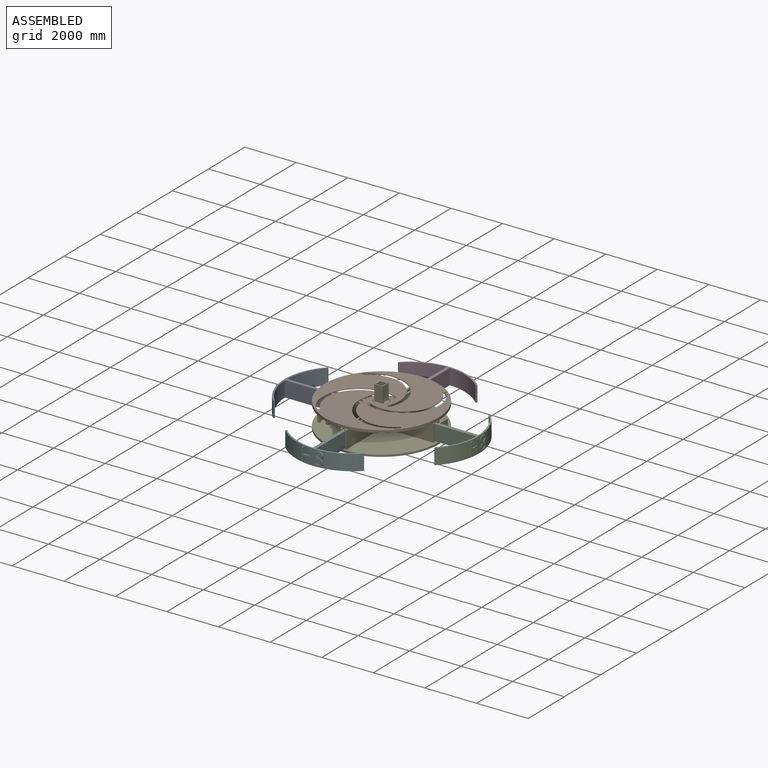
[diagram: assembled view]
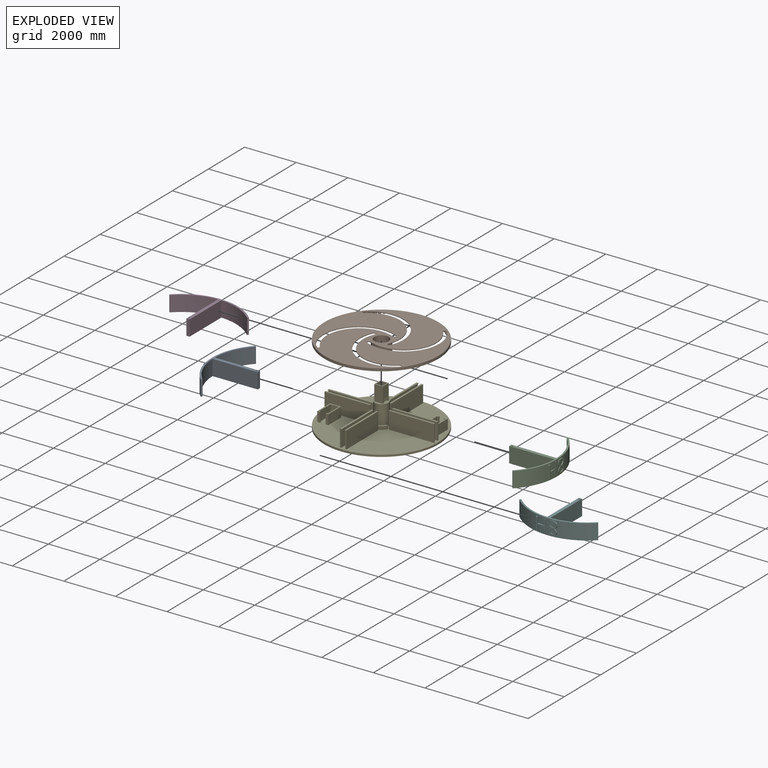
[diagram: exploded view]
GUIDED TOUR — MATED ASSEMBLY (Onshape document 1637730c43ce906da38fb0ba, AutoMate assembly 1637730c43ce906da38fb0ba_b3f430c310a2b3c474eee79f_f87a26aaee73d0ae6c627722_default)

This assembly has 6 components, labeled P0..P5 below (a component is one placed occurrence of a part; the same part can appear more than once), held together by 5 mates. A mate is a constraint between two components; its type names the relative motion it leaves free:
  REVOLUTE — leaves rotation about the listed axis free (a hinge),
  SLIDER — leaves translation along the listed axis free.
Axis/direction vectors are unit vectors and 'through' points are millimeter coordinates, both in the assembly's world frame.

MATES
  1. SLIDER "Slider 4": P4 <-> P3, axis (0.000, 1.000, 0.000) through (-2259.58, 3073.91, 1286.61) mm
  2. SLIDER "Slider 1": P4 <-> P2, axis (1.000, 0.000, 0.000) through (-35.43, 1056.26, 1286.61) mm
  3. REVOLUTE "Revolute 1": P4 <-> P1, axis (0.000, 0.000, -1.000) through (-2156.33, 953.01, 1443.84) mm
  4. SLIDER "Slider 3": P4 <-> P5, axis (0.000, -1.000, 0.000) through (-2259.58, -1167.89, 1286.61) mm
  5. SLIDER "Slider 2": P4 <-> P0, axis (-1.000, 0.000, 0.000) through (-4277.23, 849.76, 1286.61) mm

ASSEMBLY ORDER
  1. P4 — the base component [order heuristic]
  2. P1 — core [order heuristic]
  3. P2 [order verified]
  4. P0 [order verified]
  5. P5 [order verified]
  6. P3 [order verified]
Order-tag legend:
  [order verified] — this step's position reverses a verified removal order: the component was checked to insert without passing through the ones already placed.
  [order heuristic] — the first 2 components form the assembly's core: parts whose collision-free extraction could not be verified, listed in mate-graph order.

Of the 6 components, 1 carries the full construction recipe — the FeatureScript program that regenerates the part's solid from scratch; the rest are supplied as boundary geometry only.
Each toured component is shown spotlighted twice — in the assembled view, then in the exploded view, where a leader line traces a displaced component back to its assembled socket (saturated green if recipe-attached, orange if geometry-only; every other component desaturated gray) — followed by its recipe or geometry summary and the mates that hold it.
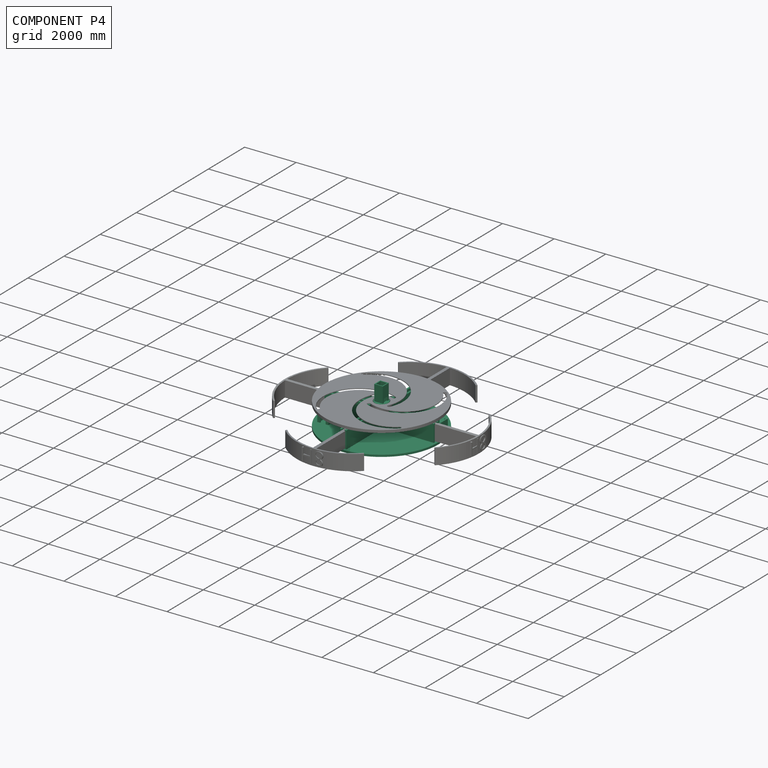
[diagram: component P4 — assembled]
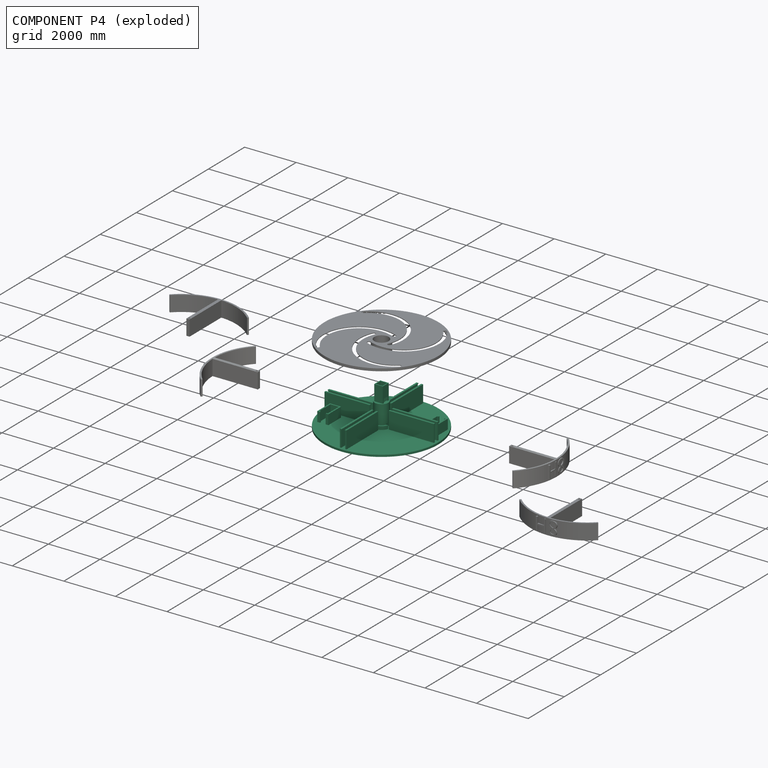
[diagram: component P4 — exploded]
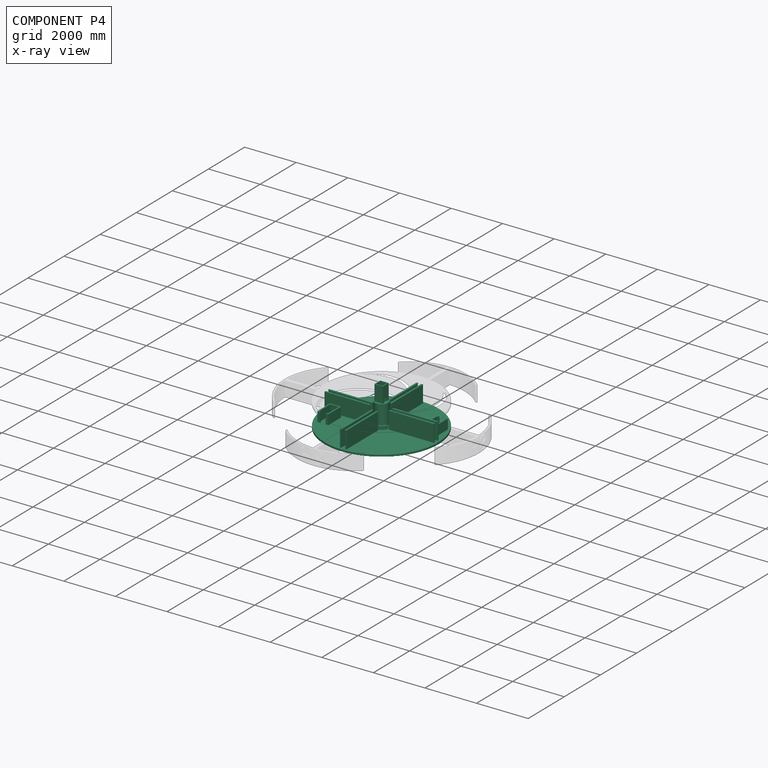
[diagram: component P4 — x-ray view]
COMPONENT P4 — recipe-attached (CADFS 00831696, mesh-verified: the recipe's output STEP matches this component's geometry to below the mesh-comparison resolution (tessellation chordal tolerance ~9.66 mm)).
Held by: SLIDER mate "Slider 4" to P3; SLIDER mate "Slider 1" to P2; REVOLUTE mate "Revolute 1" to P1; SLIDER mate "Slider 3" to P5; SLIDER mate "Slider 2" to P0.
Construction recipe (FeatureScript — the CAD program that rebuilds this solid; sketch coordinates are in the units given by the * unit suffixes, e.g. mm):

FeatureScript 1511;
import(path : "onshape/std/geometry.fs", version : "1511.0");
import(path : "onshape/std/common.fs", version : "1511.0");
const mm = millimeter;
const VERTEX = EntityType.VERTEX;
const EDGE = EntityType.EDGE;
const FACE = EntityType.FACE;
const BODY = EntityType.BODY;
function v(x, y){return vector(x, y);}
function OD(order){return orderDisambiguation(order);}
function OSD(set){return originalSetDisambiguation(set);}
function TD(topology){return topologyDisambiguation(topology);}
function TDD(query){return trueDependencyDisambiguation(query);}
function sQuery(a, b, c) {return sketchEntityQuery(a, b, c);}

annotation { "Feature Type Name" : "Feature", "Feature Type Description" : "" }
export const myFeature = defineFeature(function(context is Context, id is Id, definition is map)
    precondition{}
    {
        {
            var Q0;
            Q0=qCreatedBy(makeId("Top.planeOp"),FACE);
            var sketch = newSketch(context, id + "F0", { "sketchPlane" : qUnion([Q0])});
            skCircle(sketch, "E0", {"center": v(0, 0) * mm, "radius": 2209.8 * mm});
            skCircle(sketch, "E1", {"center": v(0, 0) * mm, "radius": 266.7 * mm});
            skLineSegment(sketch, "E2.bottom", {"start": v(-127, -127) * mm, "end": v(127, -127) * mm});
            skLineSegment(sketch, "E2.top", {"start": v(-127, 127) * mm, "end": v(127, 127) * mm});
            skLineSegment(sketch, "E2.left", {"start": v(-127, -127) * mm, "end": v(-127, 127) * mm});
            skLineSegment(sketch, "E2.right", {"start": v(127, -127) * mm, "end": v(127, 127) * mm});
            skLineSegment(sketch, "E3.bottom", {"start": v(-177.8, 177.8) * mm, "end": v(177.8, 177.8) * mm});
            skLineSegment(sketch, "E3.top", {"start": v(-177.8, -177.8) * mm, "end": v(177.8, -177.8) * mm});
            skLineSegment(sketch, "E3.left", {"start": v(-177.8, 177.8) * mm, "end": v(-177.8, -177.8) * mm});
            skLineSegment(sketch, "E3.right", {"start": v(177.8, 177.8) * mm, "end": v(177.8, -177.8) * mm});
            skLineSegment(sketch, "E4.bottom", {"start": v(182.88, 182.88) * mm, "end": v(-182.88, 182.88) * mm});
            skLineSegment(sketch, "E4.top", {"start": v(182.88, -182.88) * mm, "end": v(-182.88, -182.88) * mm});
            skLineSegment(sketch, "E4.left", {"start": v(182.88, 182.88) * mm, "end": v(182.88, -182.88) * mm});
            skLineSegment(sketch, "E4.right", {"start": v(-182.88, 182.88) * mm, "end": v(-182.88, -182.88) * mm});
            skPoint(sketch, "E5", {"position": v(0, 266.7) * mm});
            skPoint(sketch, "E6", {"position": v(266.7, 0) * mm});
            skPoint(sketch, "E7", {"position": v(0, -266.7) * mm});
            skLineSegment(sketch, "E8.bottom", {"start": v(-127, -2120.9) * mm, "end": v(127, -2120.9) * mm});
            skLineSegment(sketch, "E8.top", {"start": v(-127, -368.3) * mm, "end": v(127, -368.3) * mm});
            skLineSegment(sketch, "E8.left", {"start": v(-127, -2120.9) * mm, "end": v(-127, -368.3) * mm});
            skLineSegment(sketch, "E8.right", {"start": v(127, -2120.9) * mm, "end": v(127, -368.3) * mm});
            skLineSegment(sketch, "E9.bottom", {"start": v(368.3, -127) * mm, "end": v(2120.9, -127) * mm});
            skLineSegment(sketch, "E9.top", {"start": v(368.3, 127) * mm, "end": v(2120.9, 127) * mm});
            skLineSegment(sketch, "E9.left", {"start": v(368.3, -127) * mm, "end": v(368.3, 127) * mm});
            skLineSegment(sketch, "E9.right", {"start": v(2120.9, -127) * mm, "end": v(2120.9, 127) * mm});
            skLineSegment(sketch, "E10.bottom", {"start": v(-127, 368.3) * mm, "end": v(127, 368.3) * mm});
            skLineSegment(sketch, "E10.top", {"start": v(-127, 2120.9) * mm, "end": v(127, 2120.9) * mm});
            skLineSegment(sketch, "E10.left", {"start": v(-127, 368.3) * mm, "end": v(-127, 2120.9) * mm});
            skLineSegment(sketch, "E10.right", {"start": v(127, 368.3) * mm, "end": v(127, 2120.9) * mm});
            skCircle(sketch, "E11", {"center": v(0, 0) * mm, "radius": 368.3 * mm});
            skPoint(sketch, "E12", {"position": v(0, 368.3) * mm});
            skPoint(sketch, "E13", {"position": v(368.3, 0) * mm});
            skPoint(sketch, "E14", {"position": v(0, -368.3) * mm});
            skPoint(sketch, "E15", {"position": v(-266.7, 0) * mm});
            skPoint(sketch, "E15.positionSnap0", {"position": v(-177.8, 0) * mm});
            skPoint(sketch, "E16", {"position": v(-368.3, 0) * mm});
            skLineSegment(sketch, "E17.bottom", {"start": v(-2120.9, -127) * mm, "end": v(-368.3, -127) * mm});
            skLineSegment(sketch, "E17.top", {"start": v(-2120.9, 127) * mm, "end": v(-368.3, 127) * mm});
            skLineSegment(sketch, "E17.left", {"start": v(-2120.9, -127) * mm, "end": v(-2120.9, 127) * mm});
            skLineSegment(sketch, "E17.right", {"start": v(-368.3, -127) * mm, "end": v(-368.3, 127) * mm});
            skCircle(sketch, "E18", {"center": v(0, 0) * mm, "radius": 342.9 * mm});
            skLineSegment(sketch, "E19.bottom", {"start": v(1854.2, 304.8) * mm, "end": v(1529.08, 304.8) * mm});
            skLineSegment(sketch, "E19.top", {"start": v(1854.2, 901.7) * mm, "end": v(1529.08, 901.7) * mm});
            skLineSegment(sketch, "E19.left", {"start": v(1854.2, 304.8) * mm, "end": v(1854.2, 901.7) * mm});
            skLineSegment(sketch, "E19.right", {"start": v(1529.08, 304.8) * mm, "end": v(1529.08, 901.7) * mm});
            skLineSegment(sketch, "E20.bottom", {"start": v(1905, 254) * mm, "end": v(1478.28, 254) * mm});
            skLineSegment(sketch, "E20.top", {"start": v(1905, 952.5) * mm, "end": v(1478.28, 952.5) * mm});
            skLineSegment(sketch, "E20.left", {"start": v(1905, 254) * mm, "end": v(1905, 952.5) * mm});
            skLineSegment(sketch, "E20.right", {"start": v(1478.28, 254) * mm, "end": v(1478.28, 952.5) * mm});
            skLineSegment(sketch, "E21", {"start": v(1579.88, 901.7) * mm, "end": v(1579.88, 952.5) * mm});
            skLineSegment(sketch, "E22", {"start": v(1803.4, 901.7) * mm, "end": v(1803.4, 952.5) * mm});
            skLineSegment(sketch, "E23.bottom", {"start": v(-1765.3, -304.8) * mm, "end": v(-1440.18, -304.8) * mm});
            skLineSegment(sketch, "E23.top", {"start": v(-1765.3, -909.32) * mm, "end": v(-1440.18, -909.32) * mm});
            skLineSegment(sketch, "E23.left", {"start": v(-1765.3, -304.8) * mm, "end": v(-1765.3, -909.32) * mm});
            skLineSegment(sketch, "E23.right", {"start": v(-1440.18, -304.8) * mm, "end": v(-1440.18, -909.32) * mm});
            skPoint(sketch, "E23.middle", {"position": v(-1602.74, -607.06) * mm});
            skLineSegment(sketch, "E24.bottom", {"start": v(-1389.38, -960.12) * mm, "end": v(-1816.1, -960.12) * mm});
            skLineSegment(sketch, "E24.top", {"start": v(-1389.38, -254) * mm, "end": v(-1816.1, -254) * mm});
            skLineSegment(sketch, "E24.left", {"start": v(-1389.38, -960.12) * mm, "end": v(-1389.38, -254) * mm});
            skLineSegment(sketch, "E24.right", {"start": v(-1816.1, -960.12) * mm, "end": v(-1816.1, -254) * mm});
            skLineSegment(sketch, "E25", {"start": v(-1490.98, -909.32) * mm, "end": v(-1490.98, -960.12) * mm});
            skLineSegment(sketch, "E26", {"start": v(-1714.5, -960.12) * mm, "end": v(-1714.5, -909.32) * mm});
            skSolve(sketch);
        }
        {
            var Q0;
            Q0=makeQuery(id+"F0.imprint","IMPRINT",FACE,{"disambiguationData":[TD([[makeQuery(id+"F0.imprint","IMPRINT",EDGE,{"derivedFrom":sQuery(id+"F0.wireOp",EDGE,"E10.top")}),-1.0]])]});
            var Q1;
            Q1=makeQuery(id+"F0.imprint","IMPRINT",FACE,{"disambiguationData":[TD([[makeQuery(id+"F0.imprint","IMPRINT",EDGE,{"derivedFrom":sQuery(id+"F0.wireOp",EDGE,"E1")}),-1.0]])]});
            var Q2;
            Q2=makeQuery(id+"F0.imprint","IMPRINT",FACE,{"disambiguationData":[TD([[makeQuery(id+"F0.imprint","IMPRINT",EDGE,{"derivedFrom":sQuery(id+"F0.wireOp",EDGE,"E1")}),1.0]])]});
            var Q3;
            {var subQ4=sQuery(id+"F0.wireOp",EDGE,"E9.bottom");Q3=makeQuery(id+"F0.imprint","IMPRINT",FACE,{"disambiguationData":[TD([[makeQuery(id+"F0.imprint","IMPRINT",EDGE,{"derivedFrom":subQ4}),1.0]])]});}
            var Q4;
            {var subQ0=sQuery(id+"F0.wireOp",EDGE,"E17.bottom");Q4=makeQuery(id+"F0.imprint","IMPRINT",FACE,{"disambiguationData":[TD([[makeQuery(id+"F0.imprint","IMPRINT",EDGE,{"derivedFrom":subQ0}),1.0]])]});}
            var Q5;
            Q5=makeQuery(id+"F0.imprint","IMPRINT",FACE,{"disambiguationData":[TD([[makeQuery(id+"F0.imprint","IMPRINT",EDGE,{"derivedFrom":sQuery(id+"F0.wireOp",EDGE,"E8.bottom")}),1.0]])]});
            var Q6;
            Q6=makeQuery(id+"F0.imprint","IMPRINT",FACE,{"disambiguationData":[TD([[makeQuery(id+"F0.imprint","IMPRINT",EDGE,{"derivedFrom":sQuery(id+"F0.wireOp",EDGE,"E18")}),-1.0]])]});
            var Q7;
            Q7=makeQuery(id+"F0.imprint","IMPRINT",FACE,{"disambiguationData":[TD([[makeQuery(id+"F0.imprint","IMPRINT",EDGE,{"derivedFrom":sQuery(id+"F0.wireOp",EDGE,"E0")}),1.0]])]});
            var Q8;
            Q8=makeQuery(id+"F0.imprint","IMPRINT",FACE,{"disambiguationData":[TD([[makeQuery(id+"F0.imprint","IMPRINT",EDGE,{"derivedFrom":sQuery(id+"F0.wireOp",EDGE,"b8a19175-b3a9-4f45-8a98-ed4f9f6c6702.bottom")}),-1.0]])]});
            var Q9;
            Q9=makeQuery(id+"F0.imprint","IMPRINT",FACE,{"disambiguationData":[TD([[makeQuery(id+"F0.imprint","IMPRINT",EDGE,{"derivedFrom":sQuery(id+"F0.wireOp",EDGE,"7914a9b4-7248-453b-a2e4-3dba9f99fffc.bottom")}),1.0]])]});
            var Q10;
            {var subQ0=sQuery(id+"F0.wireOp",EDGE,"TmSJG6FK-Om5E-kqqE-cBKC-40XiXbPmcmxI");Q10=makeQuery(id+"F0.imprint","IMPRINT",FACE,{"disambiguationData":[TD([[makeQuery(id+"F0.imprint","IMPRINT",EDGE,{"derivedFrom":subQ0}),1.0]])]});}
            var Q11;
            Q11=makeQuery(id+"F0.imprint","IMPRINT",FACE,{"disambiguationData":[TD([[makeQuery(id+"F0.imprint","IMPRINT",EDGE,{"derivedFrom":sQuery(id+"F0.wireOp",EDGE,"wxg1OY8f-ebEG-U6Dd-82FZ-Xdf4qu9MraA2.bottom")}),1.0]])]});
            var Q12;
            {var subQ0=sQuery(id+"F0.wireOp",EDGE,"mW7lPLey-tL3F-X1Fa-1OeG-OaxEq5PTPofp");Q12=makeQuery(id+"F0.imprint","IMPRINT",FACE,{"disambiguationData":[TD([[makeQuery(id+"F0.imprint","IMPRINT",EDGE,{"derivedFrom":subQ0}),-1.0]])]});}
            var Q13;
            Q13=makeQuery(id+"F0.imprint","IMPRINT",FACE,{"disambiguationData":[TD([[makeQuery(id+"F0.imprint","IMPRINT",EDGE,{"derivedFrom":sQuery(id+"F0.wireOp",EDGE,"IBWuTJHf-9YuP-0ksT-Em6A-mQtnpUZ14kUv.top")}),1.0]])]});
            var Q14;
            Q14=makeQuery(id+"F0.imprint","IMPRINT",FACE,{"disambiguationData":[TD([[makeQuery(id+"F0.imprint","IMPRINT",EDGE,{"derivedFrom":sQuery(id+"F0.wireOp",EDGE,"E19.bottom")}),-1.0]])]});
            var Q15;
            Q15=makeQuery(id+"F0.imprint","IMPRINT",FACE,{"disambiguationData":[TD([[makeQuery(id+"F0.imprint","IMPRINT",EDGE,{"derivedFrom":sQuery(id+"F0.wireOp",EDGE,"E19.bottom")}),1.0]])]});
            var Q16;
            {var subQ0=sQuery(id+"F0.wireOp",EDGE,"E21");Q16=makeQuery(id+"F0.imprint","IMPRINT",FACE,{"disambiguationData":[TD([[makeQuery(id+"F0.imprint","IMPRINT",EDGE,{"derivedFrom":subQ0}),-1.0]])]});}
            var Q17;
            Q17=makeQuery(id+"F0.imprint","IMPRINT",FACE,{"disambiguationData":[TD([[makeQuery(id+"F0.imprint","IMPRINT",EDGE,{"derivedFrom":sQuery(id+"F0.wireOp",EDGE,"E23.bottom")}),-1.0]])]});
            var Q18;
            Q18=makeQuery(id+"F0.imprint","IMPRINT",FACE,{"disambiguationData":[TD([[makeQuery(id+"F0.imprint","IMPRINT",EDGE,{"derivedFrom":sQuery(id+"F0.wireOp",EDGE,"E23.bottom")}),1.0]])]});
            var Q19;
            {var subQ0=sQuery(id+"F0.wireOp",EDGE,"E25");Q19=makeQuery(id+"F0.imprint","IMPRINT",FACE,{"disambiguationData":[TD([[makeQuery(id+"F0.imprint","IMPRINT",EDGE,{"derivedFrom":subQ0}),-1.0]])]});}
            extrude(context, id + "F1", {"entities" : qUnion([Q0, Q1, Q2, Q3, Q4, Q5, Q6, Q7, Q8, Q9, Q10, Q11, Q12, Q13, Q14, Q15, Q16, Q17, Q18, Q19]), "oppositeDirection" : true, "depth" : 76.2 * mm, "offsetDistance" : 25.4 * mm});
        }
        {
            var Q0;
            Q0=makeQuery(id+"F0.imprint","IMPRINT",FACE,{"disambiguationData":[TD([[makeQuery(id+"F0.imprint","IMPRINT",EDGE,{"derivedFrom":sQuery(id+"F0.wireOp",EDGE,"E1")}),1.0]])]});
            var Q1;
            Q1=makeQuery(id+"F0.imprint","IMPRINT",FACE,{"disambiguationData":[TD([[makeQuery(id+"F0.imprint","IMPRINT",EDGE,{"derivedFrom":sQuery(id+"F0.wireOp",EDGE,"E3.bottom")}),1.0]])]});
            var Q2;
            Q2=makeQuery(id+"F0.imprint","IMPRINT",FACE,{"disambiguationData":[TD([[makeQuery(id+"F0.imprint","IMPRINT",EDGE,{"derivedFrom":sQuery(id+"F0.wireOp",EDGE,"E2.bottom")}),-1.0]])]});
            extrude(context, id + "F2", {"entities" : qUnion([Q0, Q1, Q2]), "operationType" : NewBodyOperationType.ADD, "depth" : 863.6 * mm, "offsetDistance" : 25.4 * mm});
        }
        {
            var Q0;
            Q0=makeQuery(id+"F0.imprint","IMPRINT",FACE,{"disambiguationData":[TD([[makeQuery(id+"F0.imprint","IMPRINT",EDGE,{"derivedFrom":sQuery(id+"F0.wireOp",EDGE,"E2.bottom")}),-1.0]])]});
            var Q1;
            Q1=makeQuery(id+"F0.imprint","IMPRINT",FACE,{"disambiguationData":[TD([[makeQuery(id+"F0.imprint","IMPRINT",EDGE,{"derivedFrom":sQuery(id+"F0.wireOp",EDGE,"E2.bottom")}),1.0]])]});
            var Q2;
            Q2=makeQuery(id+"F0.imprint","IMPRINT",FACE,{"disambiguationData":[TD([[makeQuery(id+"F0.imprint","IMPRINT",EDGE,{"derivedFrom":sQuery(id+"F0.wireOp",EDGE,"E3.bottom")}),1.0]])]});
            extrude(context, id + "F3", {"entities" : qUnion([Q0, Q1, Q2]), "operationType" : NewBodyOperationType.REMOVE, "depth" : 584.2 * mm, "offsetDistance" : 25.4 * mm});
        }
        {
            var Q0;
            Q0=makeQuery(id+"F2.opExtrude","CAP_FACE",FACE,{"disambiguationData":[OSD([sQuery(id+"F0.wireOp",EDGE,"E1")])],"isStart":false});
            var sketch = newSketch(context, id + "F4", { "sketchPlane" : qUnion([Q0])});
            skLineSegment(sketch, "E27.bottom", {"start": v(-127, 127) * mm, "end": v(127, 127) * mm});
            skLineSegment(sketch, "E27.top", {"start": v(-127, -127) * mm, "end": v(127, -127) * mm});
            skLineSegment(sketch, "E27.left", {"start": v(-127, 127) * mm, "end": v(-127, -127) * mm});
            skLineSegment(sketch, "E27.right", {"start": v(127, 127) * mm, "end": v(127, -127) * mm});
            skPoint(sketch, "E27.middle", {"position": v(0, 0) * mm});
            skLineSegment(sketch, "E28.bottom", {"start": v(-165.1, 165.1) * mm, "end": v(165.1, 165.1) * mm});
            skLineSegment(sketch, "E28.top", {"start": v(-165.1, -165.1) * mm, "end": v(165.1, -165.1) * mm});
            skLineSegment(sketch, "E28.left", {"start": v(-165.1, 165.1) * mm, "end": v(-165.1, -165.1) * mm});
            skLineSegment(sketch, "E28.right", {"start": v(165.1, 165.1) * mm, "end": v(165.1, -165.1) * mm});
            skSolve(sketch);
        }
        {
            var Q0;
            Q0=makeQuery(id+"F4.imprint","IMPRINT",FACE,{"disambiguationData":[TD([[makeQuery(id+"F4.imprint","IMPRINT",EDGE,{"derivedFrom":sQuery(id+"F4.wireOp",EDGE,"E27.bottom")}),1.0]])]});
            extrude(context, id + "F5", {"entities" : qUnion([Q0]), "operationType" : NewBodyOperationType.ADD, "depth" : 604.52 * mm, "offsetDistance" : 25.4 * mm});
        }
        {
            var Q0;
            Q0=makeQuery(id+"F0.imprint","IMPRINT",FACE,{"disambiguationData":[TD([[makeQuery(id+"F0.imprint","IMPRINT",EDGE,{"derivedFrom":sQuery(id+"F0.wireOp",EDGE,"E1")}),-1.0]])]});
            extrude(context, id + "F6", {"entities" : qUnion([Q0]), "operationType" : NewBodyOperationType.ADD, "depth" : 127 * mm, "offsetDistance" : 25.4 * mm});
        }
        {
            var Q0;
            Q0=qCreatedBy(makeId("Right.planeOp"),FACE);
            var sketch = newSketch(context, id + "F7", { "sketchPlane" : qUnion([Q0])});
            skLineSegment(sketch, "E29.bottom", {"start": v(-101.6, 0) * mm, "end": v(101.6, 0) * mm});
            skLineSegment(sketch, "E29.top", {"start": v(-101.6, 152.4) * mm, "end": v(101.6, 152.4) * mm});
            skLineSegment(sketch, "E29.left", {"start": v(-101.6, 0) * mm, "end": v(-101.6, 152.4) * mm});
            skLineSegment(sketch, "E29.right", {"start": v(101.6, 0) * mm, "end": v(101.6, 152.4) * mm});
            skSolve(sketch);
        }
        {
            var Q0;
            Q0 = qSketchRegion(id + "F7", true);
            extrude(context, id + "F8", {"entities" : qUnion([Q0]), "operationType" : NewBodyOperationType.REMOVE, "endBound" : BoundingType.SYMMETRIC, "depth" : 701.04 * mm, "offsetDistance" : 25.4 * mm});
        }
        {
            var Q0;
            Q0=makeQuery(id+"F0.imprint","IMPRINT",FACE,{"disambiguationData":[TD([[makeQuery(id+"F0.imprint","IMPRINT",EDGE,{"derivedFrom":sQuery(id+"F0.wireOp",EDGE,"E8.bottom")}),1.0]])]});
            var Q1;
            {var subQ1=sQuery(id+"F0.wireOp",EDGE,"E17.bottom");Q1=makeQuery(id+"F0.imprint","IMPRINT",FACE,{"disambiguationData":[TD([[makeQuery(id+"F0.imprint","IMPRINT",EDGE,{"derivedFrom":subQ1}),1.0]])]});}
            var Q2;
            Q2=makeQuery(id+"F0.imprint","IMPRINT",FACE,{"disambiguationData":[TD([[makeQuery(id+"F0.imprint","IMPRINT",EDGE,{"derivedFrom":sQuery(id+"F0.wireOp",EDGE,"E10.top")}),-1.0]])]});
            var Q3;
            {var subQ1=sQuery(id+"F0.wireOp",EDGE,"E9.bottom");Q3=makeQuery(id+"F0.imprint","IMPRINT",FACE,{"disambiguationData":[TD([[makeQuery(id+"F0.imprint","IMPRINT",EDGE,{"derivedFrom":subQ1}),1.0]])]});}
            extrude(context, id + "F9", {"entities" : qUnion([Q0, Q1, Q2, Q3]), "operationType" : NewBodyOperationType.ADD, "depth" : 660.4 * mm, "offsetDistance" : 25.4 * mm});
        }
        {
            var Q0;
            Q0=makeQuery(id+"F9.opExtrude","SWEPT_FACE",FACE,{"disambiguationData":[OSD([sQuery(id+"F0.wireOp",EDGE,"E8.bottom")])]});
            var sketch = newSketch(context, id + "F10", { "sketchPlane" : qUnion([Q0])});
            skLineSegment(sketch, "E30.bottom", {"start": v(-81.28, 629.92) * mm, "end": v(81.28, 629.92) * mm});
            skLineSegment(sketch, "E30.top", {"start": v(-81.28, 0) * mm, "end": v(81.28, 0) * mm});
            skLineSegment(sketch, "E30.left", {"start": v(-81.28, 629.92) * mm, "end": v(-81.28, 0) * mm});
            skLineSegment(sketch, "E30.right", {"start": v(81.28, 629.92) * mm, "end": v(81.28, 0) * mm});
            skLineSegment(sketch, "E31.bottom", {"start": v(-55.88, 629.92) * mm, "end": v(55.88, 629.92) * mm});
            skLineSegment(sketch, "E31.top", {"start": v(-55.88, 660.4) * mm, "end": v(55.88, 660.4) * mm});
            skLineSegment(sketch, "E31.left", {"start": v(-55.88, 629.92) * mm, "end": v(-55.88, 660.4) * mm});
            skLineSegment(sketch, "E31.right", {"start": v(55.88, 629.92) * mm, "end": v(55.88, 660.4) * mm});
            skSolve(sketch);
        }
        {
            var Q0;
            Q0=makeQuery(id+"F10.imprint","IMPRINT",FACE,{"disambiguationData":[TD([[makeQuery(id+"F10.imprint","IMPRINT",EDGE,{"derivedFrom":sQuery(id+"F10.wireOp",EDGE,"E30.top")}),1.0]])]});
            var Q1;
            {var subQ0=sQuery(id+"F10.wireOp",EDGE,"E31.top");Q1=makeQuery(id+"F10.imprint","IMPRINT",FACE,{"disambiguationData":[TD([[makeQuery(id+"F10.imprint","IMPRINT",EDGE,{"derivedFrom":subQ0}),-1.0]])]});}
            var Q2;
            {var subQ0=sQuery(id+"F10.wireOp",EDGE,"E31.bottom");Q2=makeQuery(id+"F10.imprint","IMPRINT",FACE,{"disambiguationData":[TD([[makeQuery(id+"F10.imprint","IMPRINT",EDGE,{"derivedFrom":subQ0}),1.0]])]});}
            extrude(context, id + "F11", {"entities" : qUnion([Q0, Q1, Q2]), "operationType" : NewBodyOperationType.REMOVE, "oppositeDirection" : true, "depth" : 1832.36 * mm, "offsetDistance" : 25.4 * mm});
        }
        {
            var Q0;
            Q0=makeQuery(id+"F9.opExtrude","SWEPT_FACE",FACE,{"disambiguationData":[OSD([sQuery(id+"F0.wireOp",EDGE,"E17.left")])]});
            var sketch = newSketch(context, id + "F12", { "sketchPlane" : qUnion([Q0])});
            skLineSegment(sketch, "E32.bottom", {"start": v(-81.28, 629.92) * mm, "end": v(81.28, 629.92) * mm});
            skLineSegment(sketch, "E32.top", {"start": v(-81.28, 0) * mm, "end": v(81.28, 0) * mm});
            skLineSegment(sketch, "E32.left", {"start": v(-81.28, 629.92) * mm, "end": v(-81.28, 0) * mm});
            skLineSegment(sketch, "E32.right", {"start": v(81.28, 629.92) * mm, "end": v(81.28, 0) * mm});
            skLineSegment(sketch, "E33.bottom", {"start": v(-55.88, 629.92) * mm, "end": v(55.88, 629.92) * mm});
            skLineSegment(sketch, "E33.top", {"start": v(-55.88, 661.55) * mm, "end": v(55.88, 661.55) * mm});
            skLineSegment(sketch, "E33.left", {"start": v(-55.88, 629.92) * mm, "end": v(-55.88, 661.55) * mm});
            skLineSegment(sketch, "E33.right", {"start": v(55.88, 629.92) * mm, "end": v(55.88, 661.55) * mm});
            skSolve(sketch);
        }
        {
            var Q0;
            Q0 = qSketchRegion(id + "F12", true);
            extrude(context, id + "F13", {"entities" : qUnion([Q0]), "operationType" : NewBodyOperationType.REMOVE, "oppositeDirection" : true, "depth" : 1793.24 * mm, "offsetDistance" : 25.4 * mm});
        }
        {
            var Q0;
            Q0=makeQuery(id+"F9.opExtrude","SWEPT_FACE",FACE,{"disambiguationData":[OSD([sQuery(id+"F0.wireOp",EDGE,"E10.top")])]});
            var sketch = newSketch(context, id + "F14", { "sketchPlane" : qUnion([Q0])});
            skLineSegment(sketch, "E34.bottom", {"start": v(-81.28, 629.92) * mm, "end": v(81.28, 629.92) * mm});
            skLineSegment(sketch, "E34.top", {"start": v(-81.28, 0) * mm, "end": v(81.28, 0) * mm});
            skLineSegment(sketch, "E34.left", {"start": v(-81.28, 629.92) * mm, "end": v(-81.28, 0) * mm});
            skLineSegment(sketch, "E34.right", {"start": v(81.28, 629.92) * mm, "end": v(81.28, 0) * mm});
            skLineSegment(sketch, "E35.bottom", {"start": v(-55.88, 629.92) * mm, "end": v(55.88, 629.92) * mm});
            skLineSegment(sketch, "E35.top", {"start": v(-55.88, 661.55) * mm, "end": v(55.88, 661.55) * mm});
            skLineSegment(sketch, "E35.left", {"start": v(-55.88, 629.92) * mm, "end": v(-55.88, 661.55) * mm});
            skLineSegment(sketch, "E35.right", {"start": v(55.88, 629.92) * mm, "end": v(55.88, 661.55) * mm});
            skSolve(sketch);
        }
        {
            var Q0;
            Q0 = qSketchRegion(id + "F14", true);
            extrude(context, id + "F15", {"entities" : qUnion([Q0]), "operationType" : NewBodyOperationType.REMOVE, "oppositeDirection" : true, "depth" : 1833.88 * mm, "offsetDistance" : 25.4 * mm});
        }
        {
            var Q0;
            Q0=makeQuery(id+"F9.opExtrude","SWEPT_FACE",FACE,{"disambiguationData":[OSD([sQuery(id+"F0.wireOp",EDGE,"E9.right")])]});
            var sketch = newSketch(context, id + "F16", { "sketchPlane" : qUnion([Q0])});
            skLineSegment(sketch, "E36.bottom", {"start": v(-81.28, 629.92) * mm, "end": v(81.28, 629.92) * mm});
            skLineSegment(sketch, "E36.top", {"start": v(-81.28, 0) * mm, "end": v(81.28, 0) * mm});
            skLineSegment(sketch, "E36.left", {"start": v(-81.28, 629.92) * mm, "end": v(-81.28, 0) * mm});
            skLineSegment(sketch, "E36.right", {"start": v(81.28, 629.92) * mm, "end": v(81.28, 0) * mm});
            skLineSegment(sketch, "E37.bottom", {"start": v(-55.88, 629.92) * mm, "end": v(55.88, 629.92) * mm});
            skLineSegment(sketch, "E37.top", {"start": v(-55.88, 661.55) * mm, "end": v(55.88, 661.55) * mm});
            skLineSegment(sketch, "E37.left", {"start": v(-55.88, 629.92) * mm, "end": v(-55.88, 661.55) * mm});
            skLineSegment(sketch, "E37.right", {"start": v(55.88, 629.92) * mm, "end": v(55.88, 661.55) * mm});
            skSolve(sketch);
        }
        {
            var Q0;
            Q0 = qSketchRegion(id + "F16", true);
            extrude(context, id + "F17", {"entities" : qUnion([Q0]), "operationType" : NewBodyOperationType.REMOVE, "oppositeDirection" : true, "depth" : 1811.02 * mm, "offsetDistance" : 25.4 * mm});
        }
        {
            var Q0;
            Q0=makeQuery(id+"F0.imprint","IMPRINT",FACE,{"disambiguationData":[TD([[makeQuery(id+"F0.imprint","IMPRINT",EDGE,{"derivedFrom":sQuery(id+"F0.wireOp",EDGE,"E23.bottom")}),1.0]])]});
            var Q1;
            Q1=makeQuery(id+"F0.imprint","IMPRINT",FACE,{"disambiguationData":[TD([[makeQuery(id+"F0.imprint","IMPRINT",EDGE,{"derivedFrom":sQuery(id+"F0.wireOp",EDGE,"E19.bottom")}),1.0]])]});
            extrude(context, id + "F18", {"entities" : qUnion([Q0, Q1]), "operationType" : NewBodyOperationType.ADD, "depth" : 381 * mm, "offsetDistance" : 25.4 * mm});
        }
        {
            var Q0;
            Q0=makeQuery(id+"F5.opExtrude","SWEPT_FACE",FACE,{"disambiguationData":[OSD([sQuery(id+"F4.wireOp",EDGE,"E28.right")])]});
            var sketch = newSketch(context, id + "F19", { "sketchPlane" : qUnion([Q0])});
            skLineSegment(sketch, "E38.bottom", {"start": v(-101.6, 863.6) * mm, "end": v(101.6, 863.6) * mm});
            skLineSegment(sketch, "E38.top", {"start": v(-101.6, 1016) * mm, "end": v(101.6, 1016) * mm});
            skLineSegment(sketch, "E38.left", {"start": v(-101.6, 863.6) * mm, "end": v(-101.6, 1016) * mm});
            skLineSegment(sketch, "E38.right", {"start": v(101.6, 863.6) * mm, "end": v(101.6, 1016) * mm});
            skPoint(sketch, "E38.middle", {"position": v(0, 939.8) * mm});
            skSolve(sketch);
        }
        {
            var Q0;
            Q0=makeQuery(id+"F19.imprint","IMPRINT",FACE,{"disambiguationData":[TD([[makeQuery(id+"F19.imprint","IMPRINT",EDGE,{"derivedFrom":sQuery(id+"F19.wireOp",EDGE,"E38.bottom")}),-1.0]])]});
            extrude(context, id + "F20", {"entities" : qUnion([Q0]), "operationType" : NewBodyOperationType.REMOVE, "oppositeDirection" : true, "depth" : 347.47 * mm, "offsetDistance" : 25.4 * mm});
        }
    });
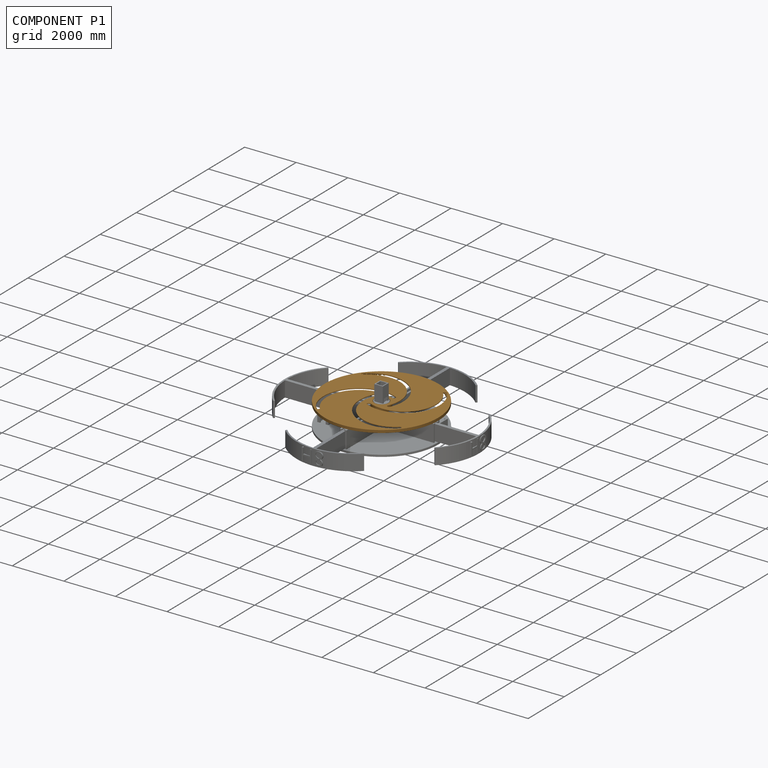
[diagram: component P1 — assembled]
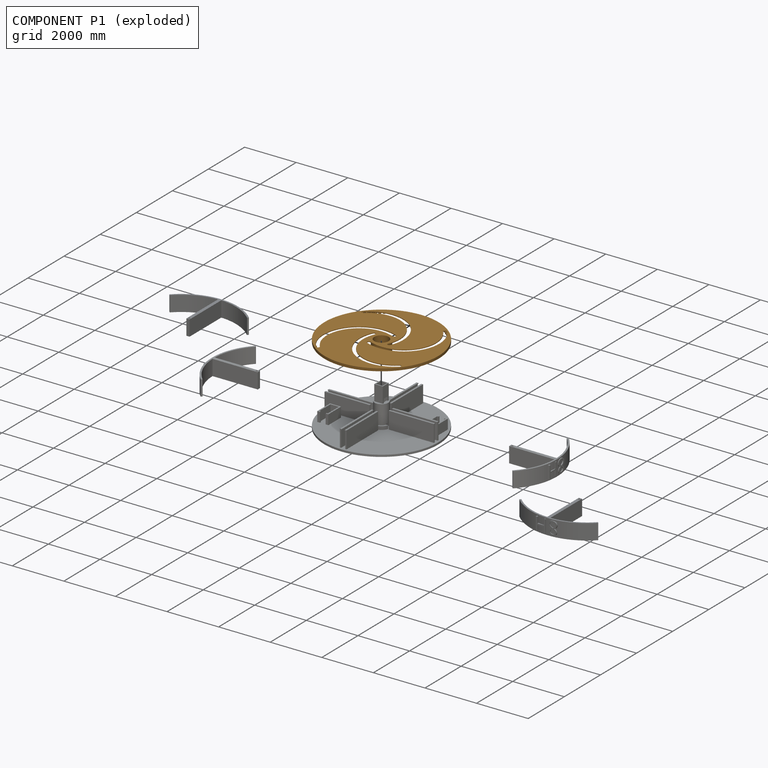
[diagram: component P1 — exploded]
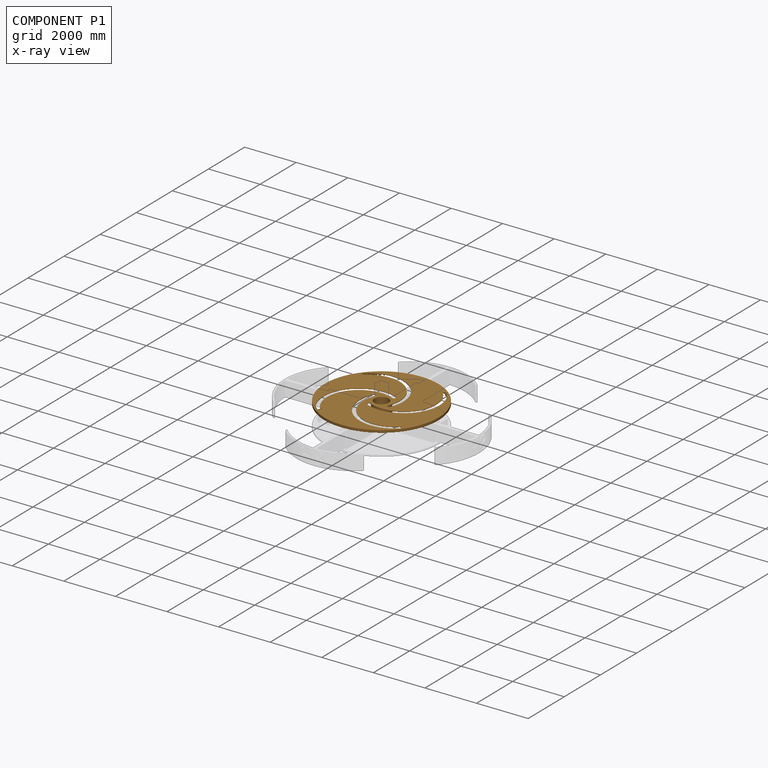
[diagram: component P1 — x-ray view]
COMPONENT P1 — geometry summary (no construction recipe available for this part):
  bounding box: 4419.6 x 4419.6 x 711.2 mm
  B-rep topology: 1 solid, 430 faces, 2532 edges
  volume: 496535020 mm^3 (4% of its bounding box)
  symmetry: 4-fold rotationally symmetric about the z axis
Held by: REVOLUTE mate "Revolute 1" to P4.
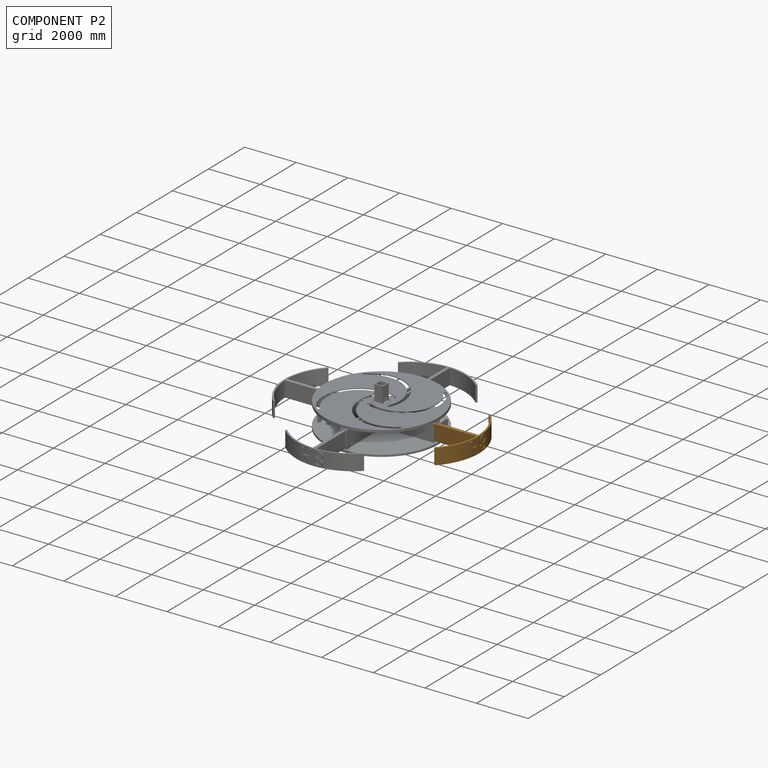
[diagram: component P2 — assembled]
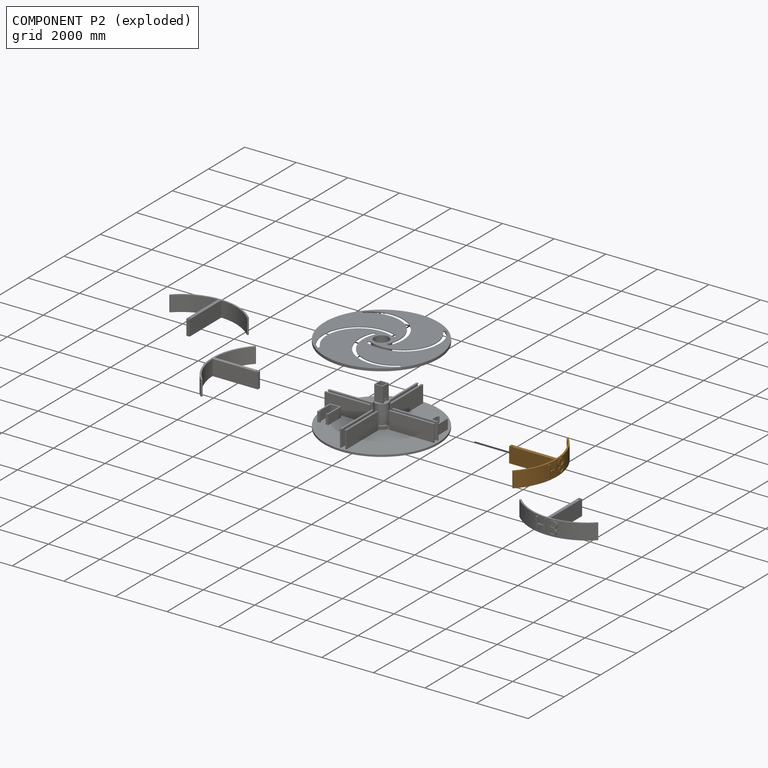
[diagram: component P2 — exploded]
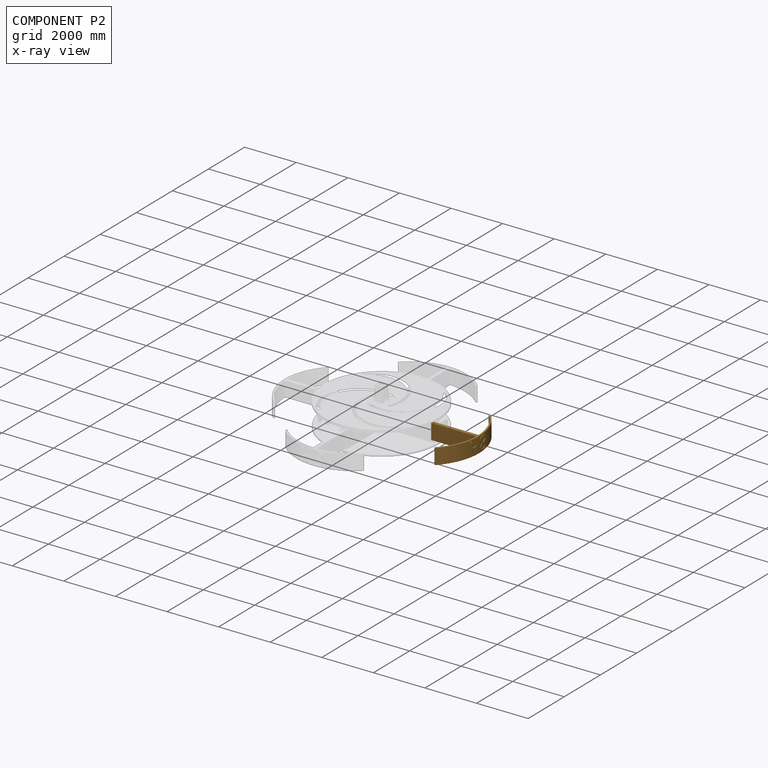
[diagram: component P2 — x-ray view]
COMPONENT P2 — geometry summary (no construction recipe available for this part):
  bounding box: 3071.1 x 1838.2 x 604.5 mm
  B-rep topology: 1 solid, 58 faces, 312 edges
  volume: 266455032 mm^3 (8% of its bounding box)
Held by: SLIDER mate "Slider 1" to P4.
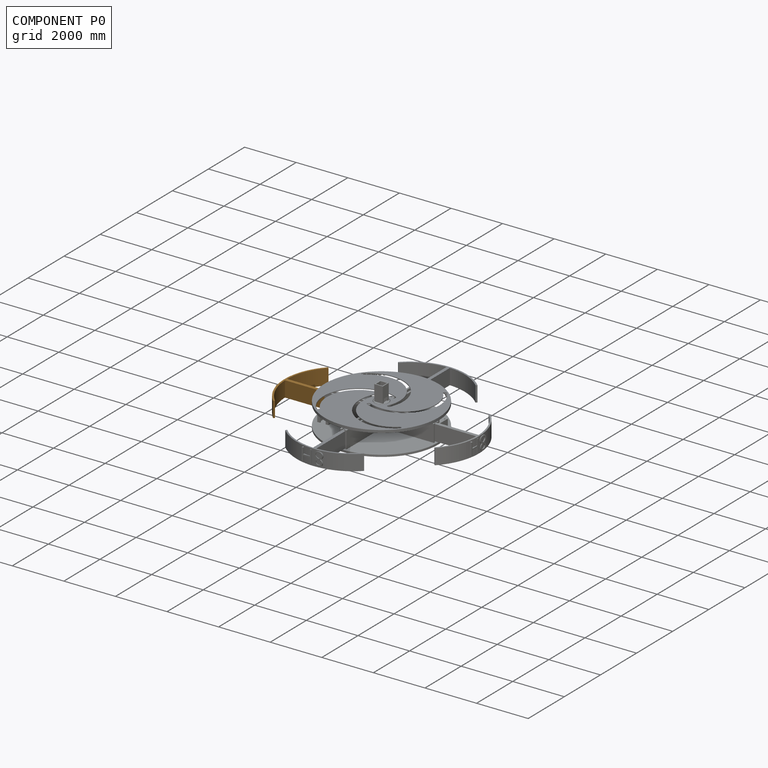
[diagram: component P0 — assembled]
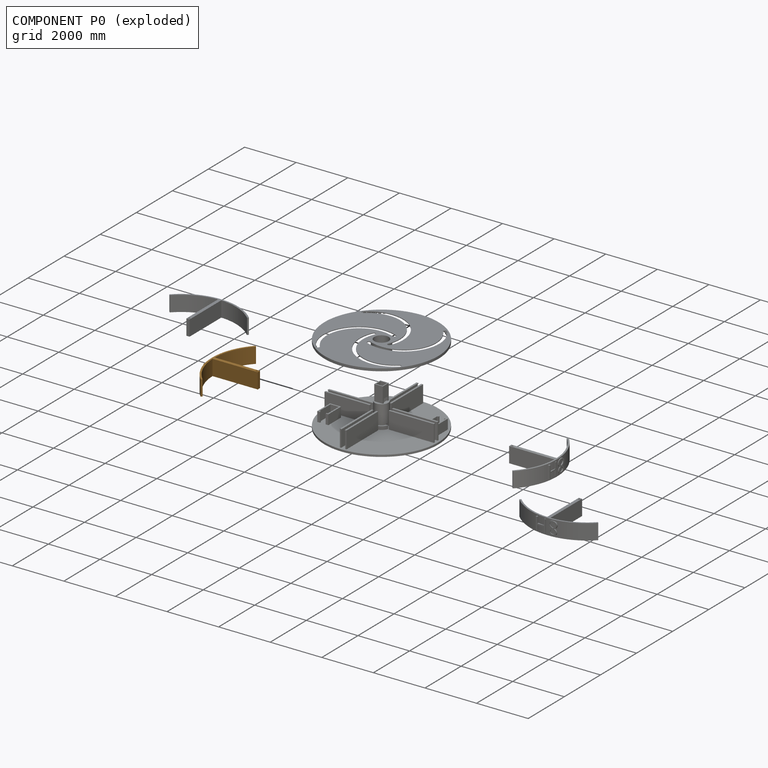
[diagram: component P0 — exploded]
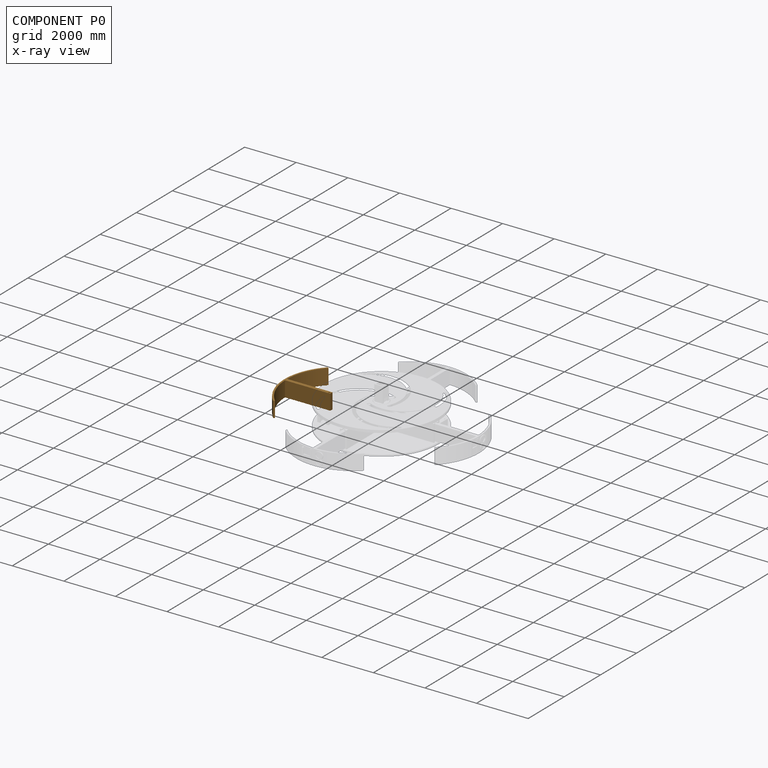
[diagram: component P0 — x-ray view]
COMPONENT P0 — geometry summary (no construction recipe available for this part):
  bounding box: 3071.1 x 1838.2 x 604.5 mm
  B-rep topology: 1 solid, 58 faces, 312 edges
  volume: 266455032 mm^3 (8% of its bounding box)
Held by: SLIDER mate "Slider 2" to P4.
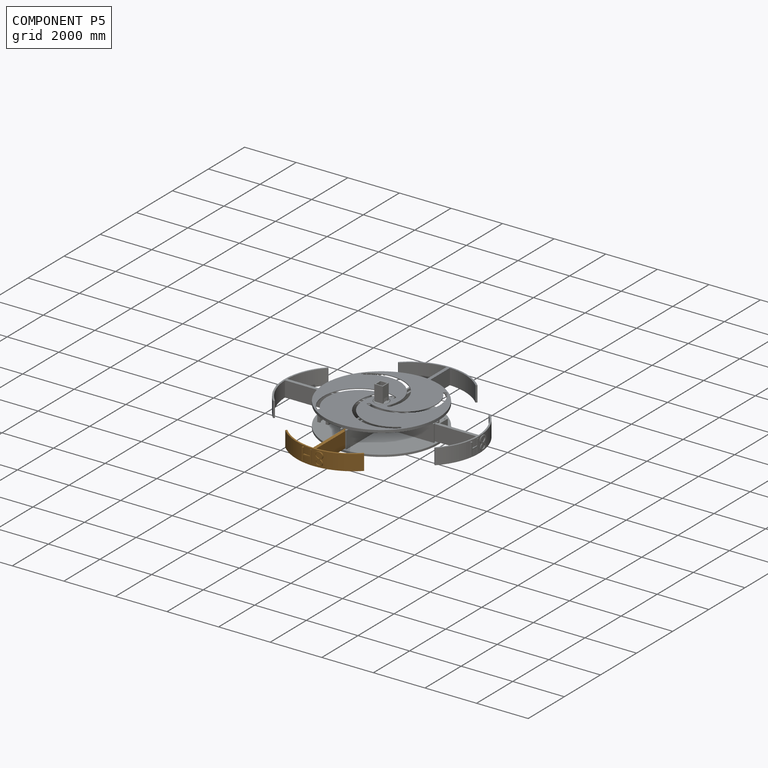
[diagram: component P5 — assembled]
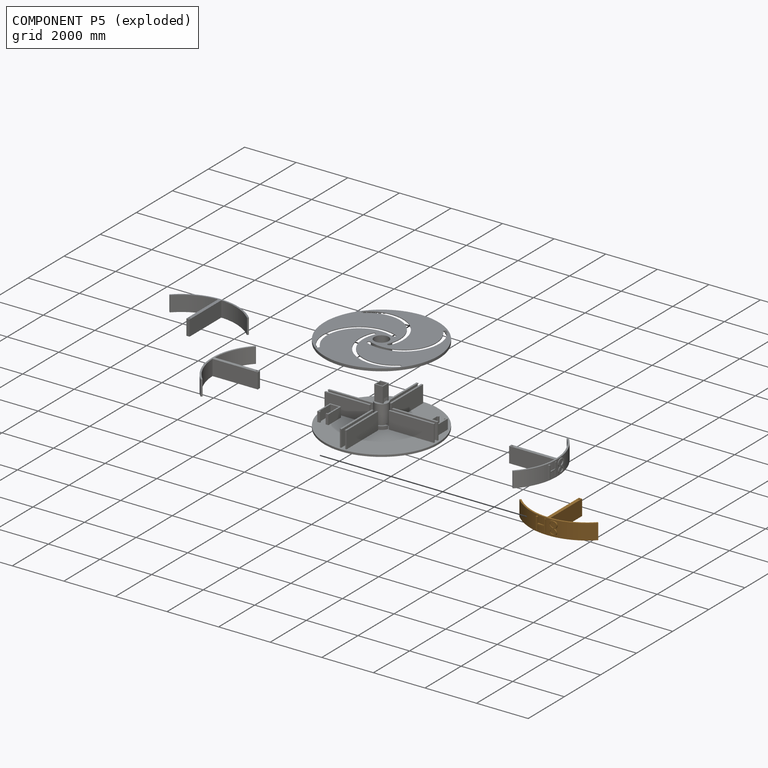
[diagram: component P5 — exploded]
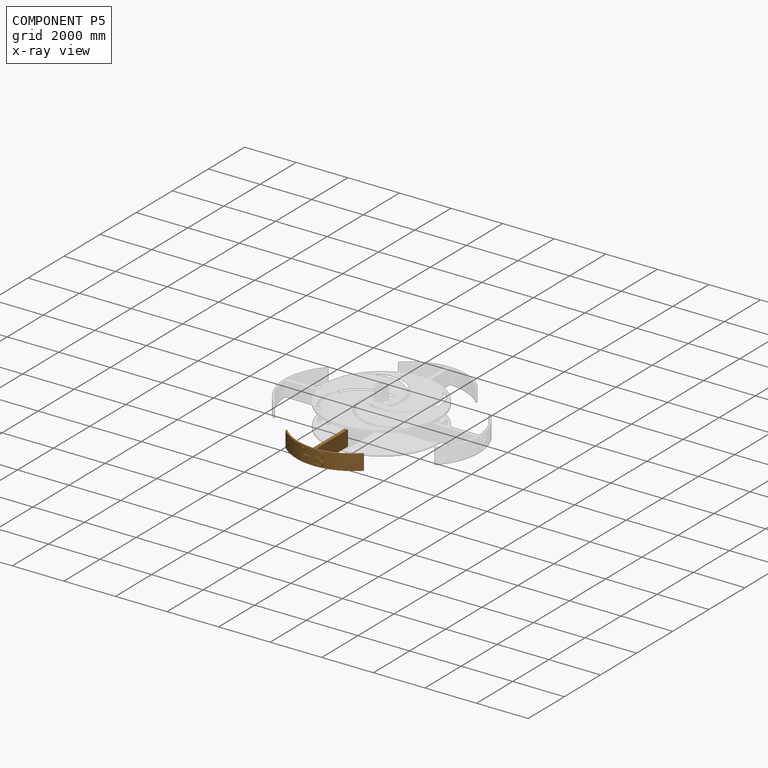
[diagram: component P5 — x-ray view]
COMPONENT P5 — geometry summary (no construction recipe available for this part):
  bounding box: 3071.1 x 1838.2 x 604.5 mm
  B-rep topology: 1 solid, 58 faces, 312 edges
  volume: 266455032 mm^3 (8% of its bounding box)
Held by: SLIDER mate "Slider 3" to P4.
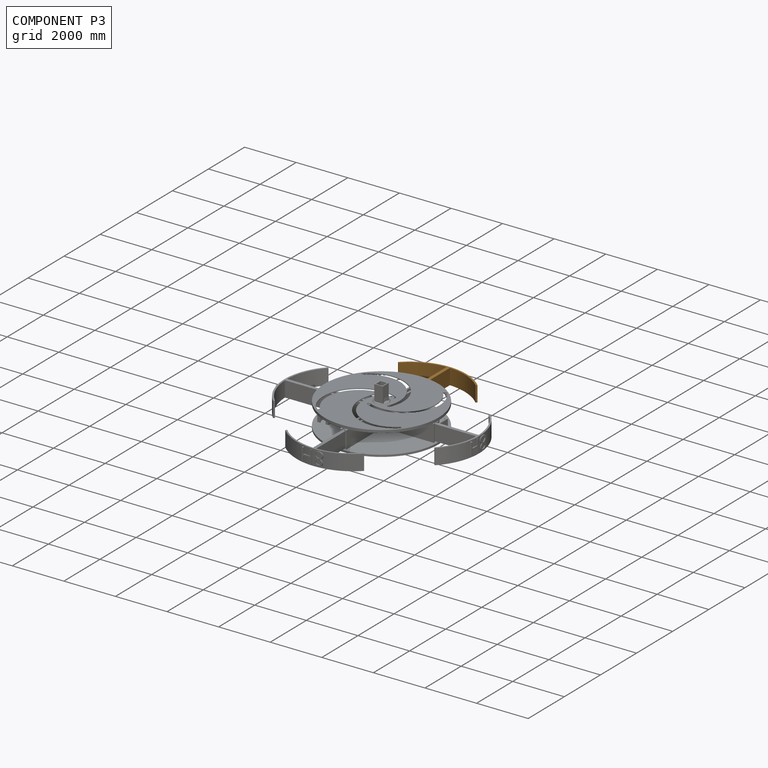
[diagram: component P3 — assembled]
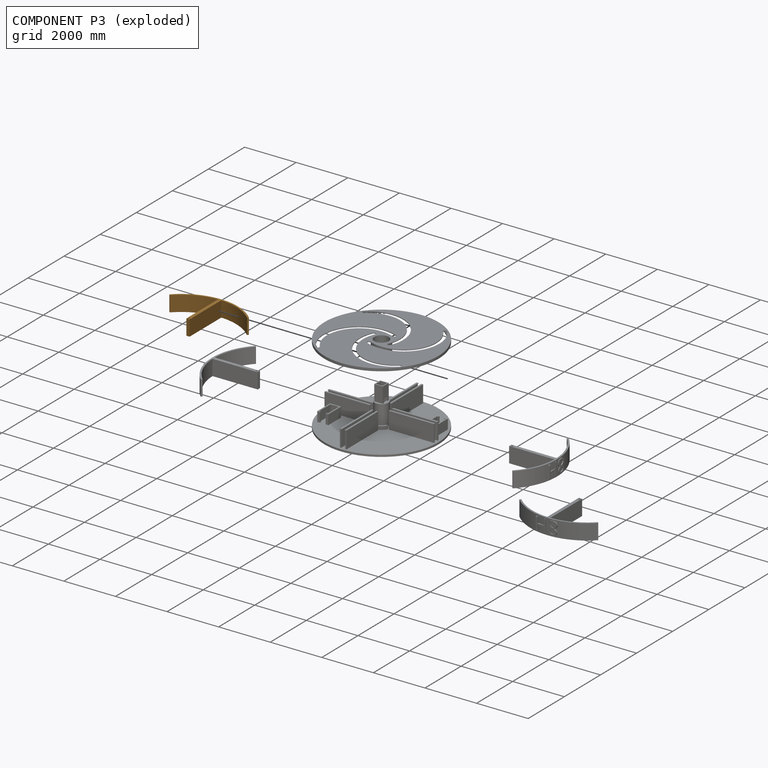
[diagram: component P3 — exploded]
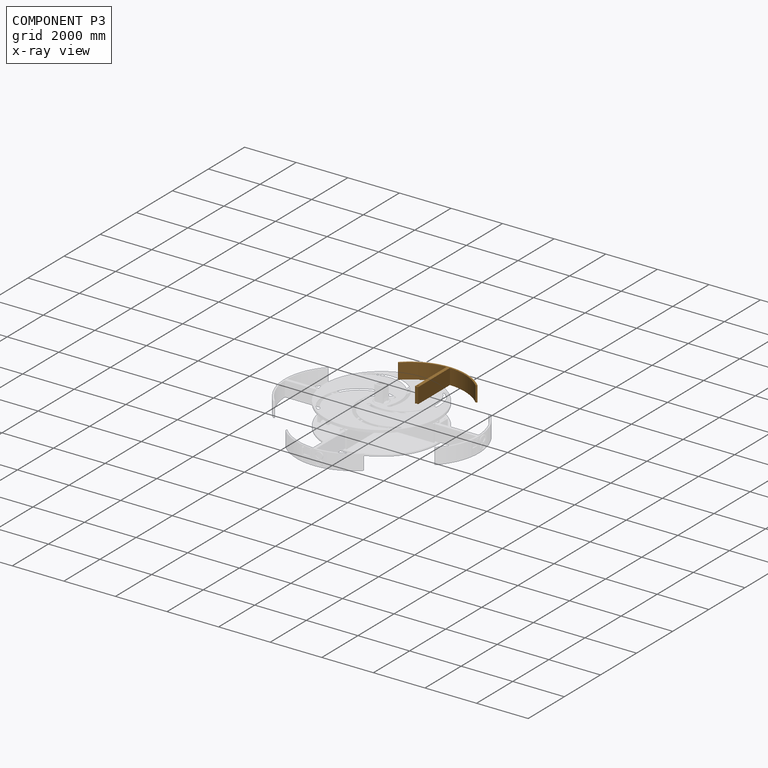
[diagram: component P3 — x-ray view]
COMPONENT P3 — geometry summary (no construction recipe available for this part):
  bounding box: 3071.1 x 1838.2 x 604.5 mm
  B-rep topology: 1 solid, 58 faces, 312 edges
  volume: 266455032 mm^3 (8% of its bounding box)
Held by: SLIDER mate "Slider 4" to P4.
PROVENANCE & LICENSES
Assembly (occurrences, transforms, mates, per-part STEP geometry): AutoMate dataset, Zenodo record 7776208, CC0.
Construction recipes: CADFS (HuggingFace VladPyatov/CADFS, CC-BY-4.0, layered over the ABC dataset), FeatureScript reconstruction programs keyed by ABC model id.
Join: ABC meta listings map ABC model id -> Onshape documentId; within a shared document, parts are matched by geometric signature (bounding-box dims + volume at 0.1% relative tolerance, exact B-rep face/solid counts).
Verification: 1 of this assembly's 6 components carries a recipe attachment, and every attachment is mesh-verified: the CADFS STEP and the AutoMate member STEP were compared as meshes in their shared local frame (symmetric sampled-point-to-mesh distance); worst across the 1 attachment: below the mesh-comparison resolution (tessellation chordal tolerance ~9.66 mm) on a 6438 mm part.
Renders: orthographic iso camera (az 35 / el 25); the floor grid conveys scale (grid pitch printed in each image; no ruler). In the exploded view each component is displaced by its stored offset vector: the offsets alone carry the explosion direction (mate normal/axis signs are not orientation cues and do not encode it), and separation distances are assigned per mate-chain, not proportionally to assembly-order depth.
